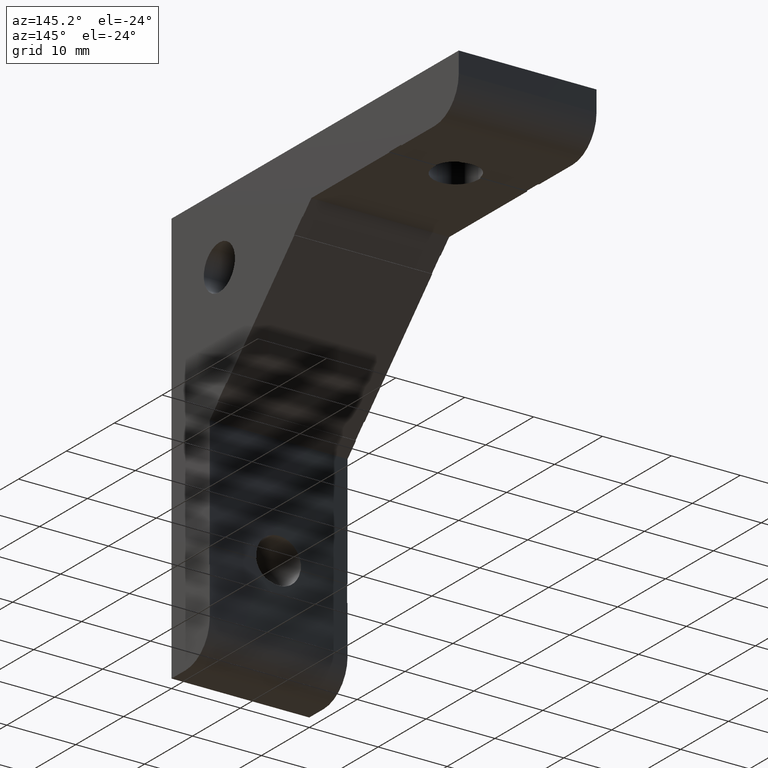
[diagram: clean part render]
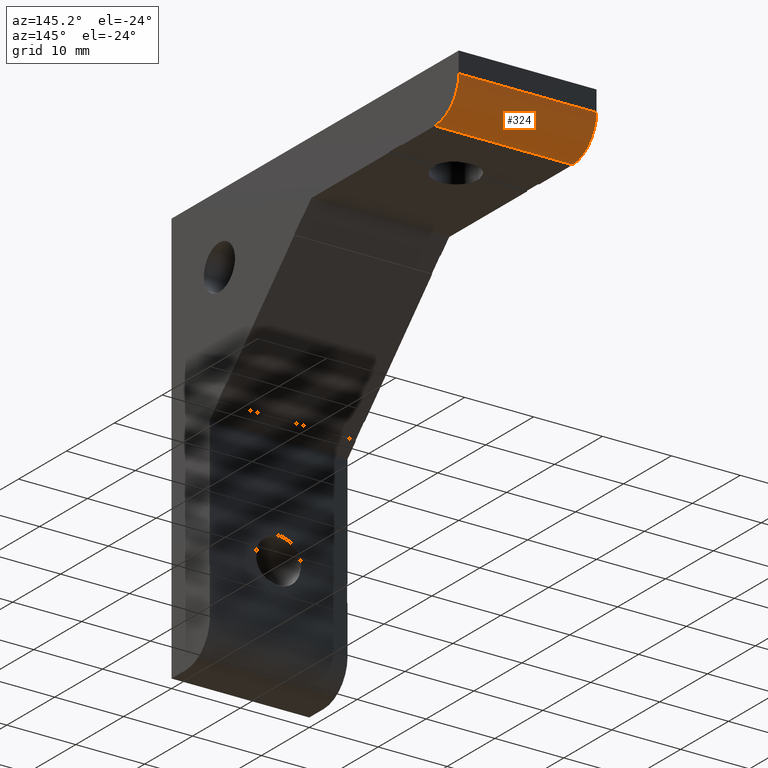
[diagram: same view with one face highlighted and labeled with its STEP entity id]
A machine part, auxiliary view. The second image highlights one B-rep face of the part: STEP entity #324.
In plain terms, the highlighted cylindrical surface (partial cylindrical patch) has radius 5 mm, axis along (-1, -0, -0).
Its self-contained STEP definition (entity closure, byte-faithful):
#49 = ORIENTED_EDGE ( 'NONE', *, *, #592, .T. ) ;
#50 = ORIENTED_EDGE ( 'NONE', *, *, #593, .F. ) ;
#51 = ORIENTED_EDGE ( 'NONE', *, *, #625, .T. ) ;
#52 = ORIENTED_EDGE ( 'NONE', *, *, #624, .T. ) ;
#257 = CARTESIAN_POINT ( 'NONE',  ( 19.99999999999999600, 60.00000000000000000, -3.000000000000000000 ) ) ;
#262 = CARTESIAN_POINT ( 'NONE',  ( 8.673617379884035500E-016, 60.00000000000000000, -3.000000000000000000 ) ) ;
#264 = CARTESIAN_POINT ( 'NONE',  ( 3.469446951953614200E-015, 54.99999999999999300, -7.999999989999999200 ) ) ;
#265 = CARTESIAN_POINT ( 'NONE',  ( 20.00000000000000000, 55.00000000000000000, -7.999999989999999200 ) ) ;
#324 = ADVANCED_FACE ( 'NONE', ( #1301 ), #1302, .T. ) ;
#357 = CARTESIAN_POINT ( 'NONE',  ( 20.00000000000000000, 55.00000000000000000, -3.000000000000000000 ) ) ;
#358 = DIRECTION ( 'NONE',  ( -1.000000000000000000, -3.469446951953613700E-016, -0.0000000000000000000 ) ) ;
#359 = DIRECTION ( 'NONE',  ( 0.0000000000000000000, -1.000000000000000000, 0.0000000000000000000 ) ) ;
#532 = AXIS2_PLACEMENT_3D ( 'NONE', #357, #358, #359 ) ;
#592 = EDGE_CURVE ( 'NONE', #1279, #1278, #975, .T. ) ;
#593 = EDGE_CURVE ( 'NONE', #1275, #1278, #978, .T. ) ;
#624 = EDGE_CURVE ( 'NONE', #1259, #1279, #1046, .T. ) ;
#625 = EDGE_CURVE ( 'NONE', #1275, #1259, #1045, .T. ) ;
#635 = AXIS2_PLACEMENT_3D ( 'NONE', #1158, #1159, #1160 ) ;
#639 = AXIS2_PLACEMENT_3D ( 'NONE', #1224, #1225, #1226 ) ;
#776 = EDGE_LOOP ( 'NONE', ( #49, #50, #51, #52 ) ) ;
#975 = LINE ( 'NONE', #1156, #976 ) ;
#976 = VECTOR ( 'NONE', #1157, 1000.000000000000000 ) ;
#978 = CIRCLE ( 'NONE', #635, 4.999999999999997300 ) ;
#1045 = LINE ( 'NONE', #1227, #1047 ) ;
#1046 = CIRCLE ( 'NONE', #639, 4.999999999999997300 ) ;
#1047 = VECTOR ( 'NONE', #1228, 1000.000000000000000 ) ;
#1156 = CARTESIAN_POINT ( 'NONE',  ( 10.00000000000000000, 55.00000000000000000, -8.000000000000000000 ) ) ;
#1157 = DIRECTION ( 'NONE',  ( -1.000000000000000000, -0.0000000000000000000, -0.0000000000000000000 ) ) ;
#1158 = CARTESIAN_POINT ( 'NONE',  ( 3.469446951953614200E-015, 54.99999999999999300, -3.000000000000000000 ) ) ;
#1159 = DIRECTION ( 'NONE',  ( -1.000000000000000000, -3.469446951953613700E-016, -0.0000000000000000000 ) ) ;
#1160 = DIRECTION ( 'NONE',  ( 3.469446951953616200E-016, -1.000000000000000000, 0.0000000000000000000 ) ) ;
#1224 = CARTESIAN_POINT ( 'NONE',  ( 20.00000000000000000, 55.00000000000000000, -3.000000000000000000 ) ) ;
#1225 = DIRECTION ( 'NONE',  ( -1.000000000000000000, -3.469446951953613700E-016, -0.0000000000000000000 ) ) ;
#1226 = DIRECTION ( 'NONE',  ( 0.0000000000000000000, -1.000000000000000000, 0.0000000000000000000 ) ) ;
#1227 = CARTESIAN_POINT ( 'NONE',  ( 10.00000000000000000, 60.00000000000000000, -3.000000000000000000 ) ) ;
#1228 = DIRECTION ( 'NONE',  ( 1.000000000000000000, 0.0000000000000000000, 0.0000000000000000000 ) ) ;
#1259 = VERTEX_POINT ( 'NONE', #257 ) ;
#1275 = VERTEX_POINT ( 'NONE', #262 ) ;
#1278 = VERTEX_POINT ( 'NONE', #264 ) ;
#1279 = VERTEX_POINT ( 'NONE', #265 ) ;
#1301 = FACE_OUTER_BOUND ( 'NONE', #776, .T. ) ;
#1302 = CYLINDRICAL_SURFACE ( 'NONE', #532, 4.999999999999997300 ) ;